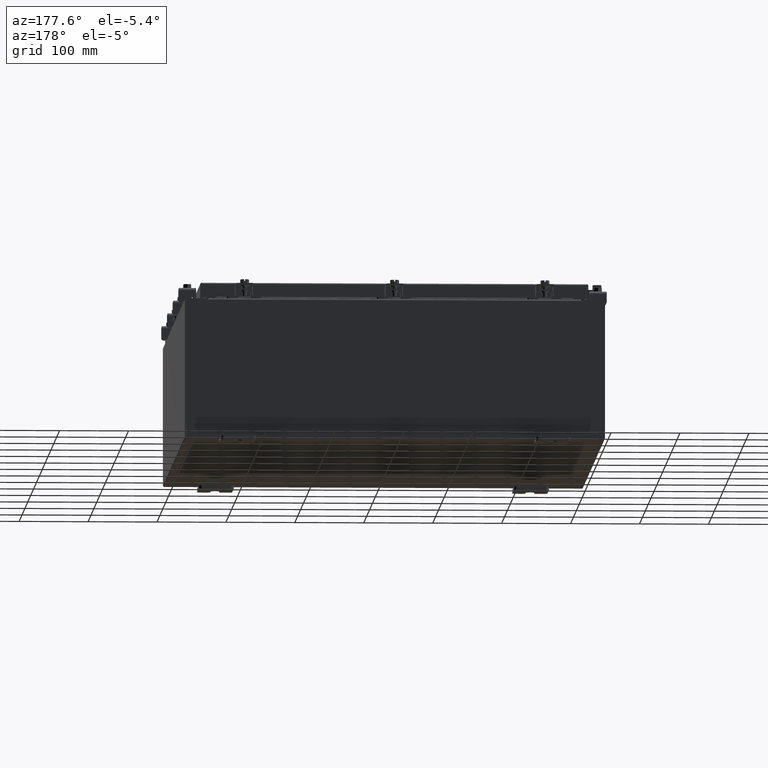
[diagram: clean part render]
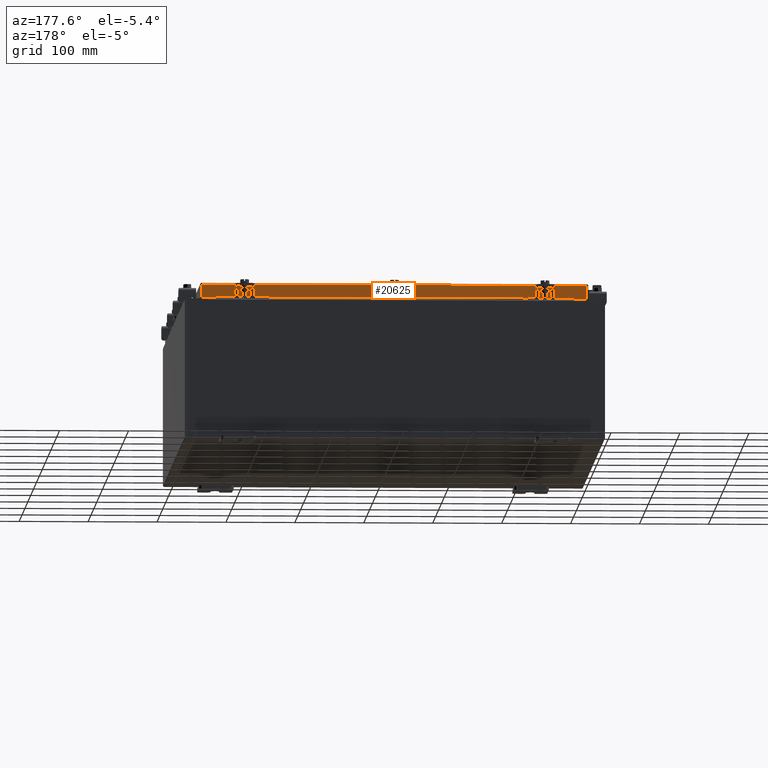
[diagram: same view with one face highlighted and labeled with its STEP entity id]
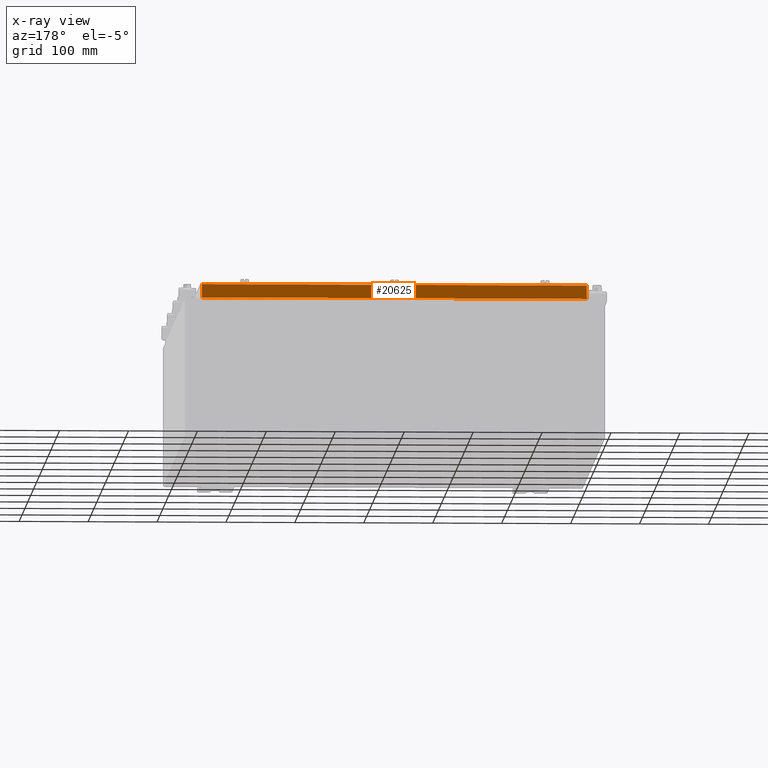
[diagram: x-ray of the same camera — body ghosted, the highlighted face saturated]
A machine part, auxiliary view. The second image highlights one B-rep face of the part: STEP entity #20625.
The next image is the same camera in x-ray: the body ghosted, the highlighted face saturated — about 0% of this face is hidden behind the body in this view.
In plain terms, the highlighted planar face has unit normal (0, -1, -0).
Its self-contained STEP definition (entity closure, byte-faithful):
#944 = VECTOR ( 'NONE', #12544, 39.37007874015748100 ) ;
#1096 = ORIENTED_EDGE ( 'NONE', *, *, #10794, .F. ) ;
#1907 = CARTESIAN_POINT ( 'NONE',  ( -10.98915786437626900, 14.09400000000000100, -0.8500000000000024200 ) ) ;
#2538 = ORIENTED_EDGE ( 'NONE', *, *, #8834, .T. ) ;
#2590 = EDGE_LOOP ( 'NONE', ( #8808, #2538, #14991, #11703, #18918, #1096 ) ) ;
#2842 = VECTOR ( 'NONE', #9098, 39.37007874015748100 ) ;
#4553 = EDGE_CURVE ( 'NONE', #13414, #23158, #11423, .T. ) ;
#4945 = CARTESIAN_POINT ( 'NONE',  ( -11.07799999999999900, 14.09399999999999900, -0.08770000000000007000 ) ) ;
#5755 = LINE ( 'NONE', #16008, #9980 ) ;
#6938 = DIRECTION ( 'NONE',  ( 1.000000000000000000, -4.379057701015054300E-047, 1.233005954894504400E-016 ) ) ;
#7109 = DIRECTION ( 'NONE',  ( 1.000000000000000000, -4.379057701015054300E-047, 1.233005954894504400E-016 ) ) ;
#7221 = CARTESIAN_POINT ( 'NONE',  ( 10.98915786437626900, 14.09399999999999900, 3.999012166344507700E-014 ) ) ;
#8184 = LINE ( 'NONE', #17996, #2842 ) ;
#8402 = CARTESIAN_POINT ( 'NONE',  ( -10.23915786437626700, 14.09399999999999900, -0.8500000000000033100 ) ) ;
#8755 = VERTEX_POINT ( 'NONE', #12392 ) ;
#8808 = ORIENTED_EDGE ( 'NONE', *, *, #4553, .F. ) ;
#8834 = EDGE_CURVE ( 'NONE', #13414, #14593, #15228, .T. ) ;
#9048 = VECTOR ( 'NONE', #6938, 39.37007874015748100 ) ;
#9098 = DIRECTION ( 'NONE',  ( 1.000000000000000000, -0.0000000000000000000, -0.0000000000000000000 ) ) ;
#9773 = EDGE_CURVE ( 'NONE', #20832, #18959, #12684, .T. ) ;
#9815 = DIRECTION ( 'NONE',  ( -0.0000000000000000000, 2.818880942772350300E-015, -1.000000000000000000 ) ) ;
#9917 = CARTESIAN_POINT ( 'NONE',  ( -10.98915786437626700, 14.09399999999999900, -0.08770000000000007000 ) ) ;
#9980 = VECTOR ( 'NONE', #7109, 39.37007874015748100 ) ;
#10292 = DIRECTION ( 'NONE',  ( -1.000000000000000000, -3.475696988576942200E-031, -9.473942235605600700E-046 ) ) ;
#10314 = PLANE ( 'NONE',  #17790 ) ;
#10794 = EDGE_CURVE ( 'NONE', #23158, #20832, #14878, .T. ) ;
#11423 = LINE ( 'NONE', #4945, #19797 ) ;
#11703 = ORIENTED_EDGE ( 'NONE', *, *, #15692, .F. ) ;
#12093 = DIRECTION ( 'NONE',  ( 0.0000000000000000000, 2.818880942772350300E-015, -1.000000000000000000 ) ) ;
#12392 = CARTESIAN_POINT ( 'NONE',  ( 10.23915786437626700, 14.09399999999999900, -0.8500000000000033100 ) ) ;
#12544 = DIRECTION ( 'NONE',  ( 0.0000000000000000000, 2.818880942772350300E-015, -1.000000000000000000 ) ) ;
#12684 = LINE ( 'NONE', #14131, #9048 ) ;
#13414 = VERTEX_POINT ( 'NONE', #22402 ) ;
#14131 = CARTESIAN_POINT ( 'NONE',  ( -11.07799999999999900, 14.09400000000000100, -0.8500000000000024200 ) ) ;
#14593 = VERTEX_POINT ( 'NONE', #18591 ) ;
#14685 = FACE_OUTER_BOUND ( 'NONE', #2590, .T. ) ;
#14878 = LINE ( 'NONE', #15098, #19063 ) ;
#14991 = ORIENTED_EDGE ( 'NONE', *, *, #20035, .F. ) ;
#15098 = CARTESIAN_POINT ( 'NONE',  ( -10.98915786437626900, 14.09399999999999900, -0.07469999999999978000 ) ) ;
#15228 = LINE ( 'NONE', #7221, #944 ) ;
#15692 = EDGE_CURVE ( 'NONE', #18959, #8755, #8184, .T. ) ;
#16008 = CARTESIAN_POINT ( 'NONE',  ( -11.07799999999999900, 14.09400000000000100, -0.8500000000000024200 ) ) ;
#17790 = AXIS2_PLACEMENT_3D ( 'NONE', #22713, #22797, #12093 ) ;
#17996 = CARTESIAN_POINT ( 'NONE',  ( -10.23915786437626700, 14.09399999999999900, -0.8500000000000033100 ) ) ;
#18591 = CARTESIAN_POINT ( 'NONE',  ( 10.98915786437626700, 14.09400000000000100, -0.8499999999999996400 ) ) ;
#18918 = ORIENTED_EDGE ( 'NONE', *, *, #9773, .F. ) ;
#18959 = VERTEX_POINT ( 'NONE', #8402 ) ;
#19063 = VECTOR ( 'NONE', #9815, 39.37007874015748100 ) ;
#19797 = VECTOR ( 'NONE', #10292, 39.37007874015748100 ) ;
#20035 = EDGE_CURVE ( 'NONE', #8755, #14593, #5755, .T. ) ;
#20625 = ADVANCED_FACE ( 'NONE', ( #14685 ), #10314, .F. ) ;
#20832 = VERTEX_POINT ( 'NONE', #1907 ) ;
#22402 = CARTESIAN_POINT ( 'NONE',  ( 10.98915786437626700, 14.09399999999999900, -0.08770000000000007000 ) ) ;
#22713 = CARTESIAN_POINT ( 'NONE',  ( -4.898647335700341400E-030, 14.09399999999999900, 3.999012166344507700E-014 ) ) ;
#22797 = DIRECTION ( 'NONE',  ( 3.475696988576941300E-031, -1.000000000000000000, -2.818880942772350300E-015 ) ) ;
#23158 = VERTEX_POINT ( 'NONE', #9917 ) ;